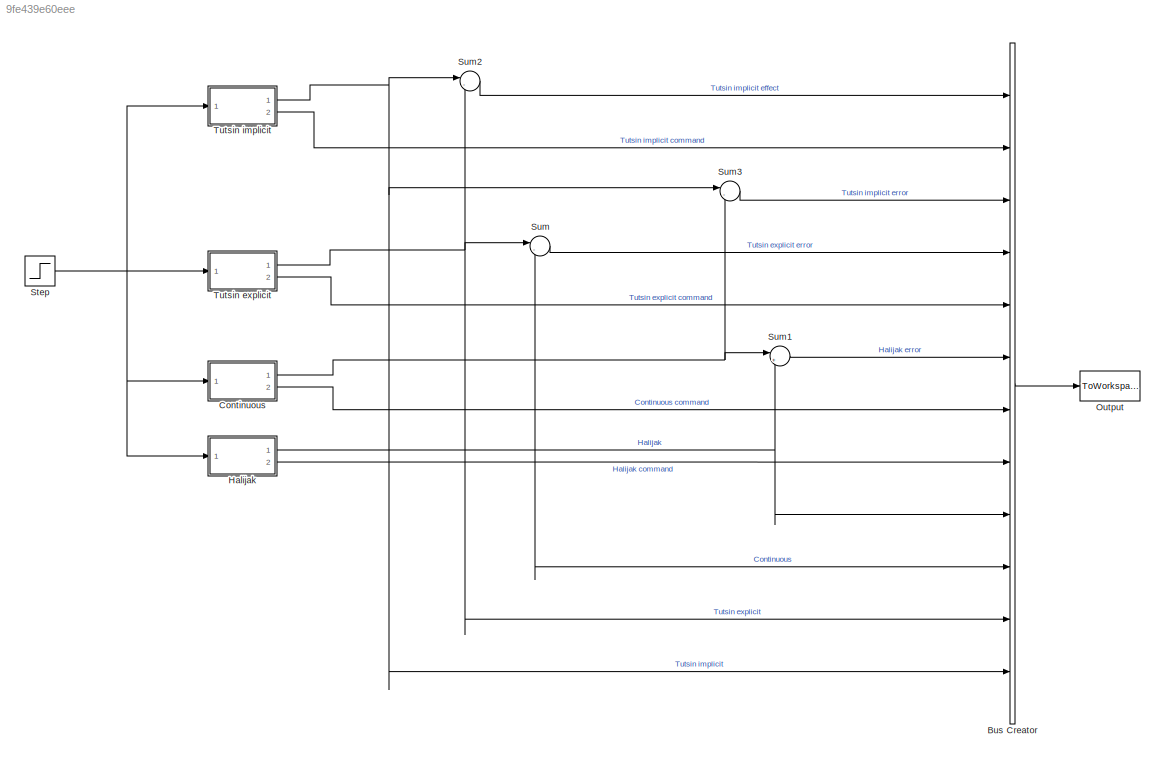
MODEL slx_9fe439e60eee
KIND model
CONFIG StopFcn = save(wSaveFileName,wSaveFileName)
BLOCK [BusCreator] Bus Creator
  DisplayOption = bar
  Inputs = 12
  Ports = [12, 1]
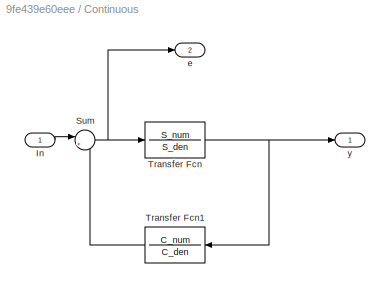
BLOCK [SubSystem] Continuous
  Ports = [1, 2]
  RequestExecContextInheritance = off
BLOCK [Inport] Continuous/In
  IconDisplay = Port number
BLOCK [Sum] Continuous/Sum
  IconShape = round
  InputSameDT = off
  Inputs = |+-
  OutDataTypeStr = Inherit: Inherit via internal rule
  Ports = [2, 1]
  SaturateOnIntegerOverflow = off
BLOCK [TransferFcn] Continuous/Transfer Fcn
  Denominator = S_den
  Numerator = S_num
BLOCK [TransferFcn] Continuous/Transfer Fcn1
  Denominator = C_den
  Numerator = C_num
BLOCK [Outport] Continuous/e
  IconDisplay = Port number
  Port = 2
BLOCK [Outport] Continuous/y
  IconDisplay = Port number
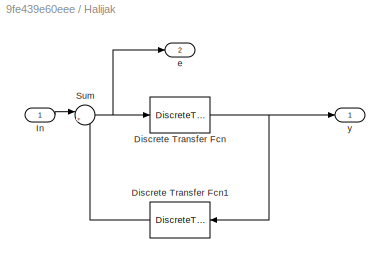
BLOCK [SubSystem] Halijak
  Ports = [1, 2]
  RequestExecContextInheritance = off
BLOCK [DiscreteTransferFcn] Halijak/Discrete Transfer Fcn
  Denominator = S_den
  InputPortMap = u0
  Numerator = S_num
  Ports = [1, 1]
  SampleTime = T
BLOCK [DiscreteTransferFcn] Halijak/Discrete Transfer Fcn1
  Denominator = C_den
  InputPortMap = u0
  Numerator = C_num
  Ports = [1, 1]
  SampleTime = T
BLOCK [Inport] Halijak/In
  IconDisplay = Port number
BLOCK [Sum] Halijak/Sum
  IconShape = round
  InputSameDT = off
  Inputs = |+-
  OutDataTypeStr = Inherit: Inherit via internal rule
  Ports = [2, 1]
  SaturateOnIntegerOverflow = off
BLOCK [Outport] Halijak/e
  IconDisplay = Port number
  Port = 2
BLOCK [Outport] Halijak/y
  IconDisplay = Port number
BLOCK [ToWorkspace] Output
  FixptAsFi = on
  MaxDataPoints = inf
  Ports = [1]
  SampleTime = wSampleTime
  Save2DSignal = 3-D array (concatenate along third dimension)
  SaveFormat = Timeseries
  VariableName = Ymodel
BLOCK [Step] Step
  After = 0.1
  SampleTime = 0
  Time = 0
BLOCK [Sum] Sum
  IconShape = round
  InputSameDT = off
  Inputs = |-+
  OutDataTypeStr = Inherit: Inherit via internal rule
  Ports = [2, 1]
  SaturateOnIntegerOverflow = off
BLOCK [Sum] Sum1
  IconShape = round
  InputSameDT = off
  Inputs = |+-
  OutDataTypeStr = Inherit: Inherit via internal rule
  Ports = [2, 1]
  SaturateOnIntegerOverflow = off
BLOCK [Sum] Sum2
  IconShape = round
  InputSameDT = off
  Inputs = |-+
  OutDataTypeStr = Inherit: Inherit via internal rule
  Ports = [2, 1]
  SaturateOnIntegerOverflow = off
BLOCK [Sum] Sum3
  IconShape = round
  InputSameDT = off
  Inputs = |-+
  OutDataTypeStr = Inherit: Inherit via internal rule
  Ports = [2, 1]
  SaturateOnIntegerOverflow = off
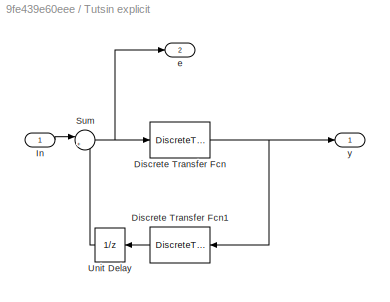
BLOCK [SubSystem] Tutsin explicit
  Ports = [1, 2]
  RequestExecContextInheritance = off
BLOCK [DiscreteTransferFcn] Tutsin explicit/Discrete Transfer Fcn
  Denominator = S_den
  InputPortMap = u0
  Numerator = S_num
  Ports = [1, 1]
  SampleTime = T
BLOCK [DiscreteTransferFcn] Tutsin explicit/Discrete Transfer Fcn1
  Denominator = C_den
  InputPortMap = u0
  Numerator = C_num
  Ports = [1, 1]
  SampleTime = T
BLOCK [Inport] Tutsin explicit/In
  IconDisplay = Port number
BLOCK [Sum] Tutsin explicit/Sum
  IconShape = round
  InputSameDT = off
  Inputs = |+-
  OutDataTypeStr = Inherit: Inherit via internal rule
  Ports = [2, 1]
  SaturateOnIntegerOverflow = off
BLOCK [UnitDelay] Tutsin explicit/Unit Delay
  InputProcessing = Elements as channels (sample based)
  SampleTime = T
BLOCK [Outport] Tutsin explicit/e
  IconDisplay = Port number
  Port = 2
BLOCK [Outport] Tutsin explicit/y
  IconDisplay = Port number
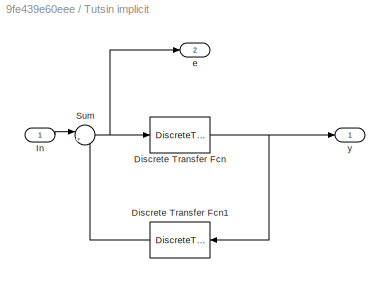
BLOCK [SubSystem] Tutsin implicit
  Ports = [1, 2]
  RequestExecContextInheritance = off
BLOCK [DiscreteTransferFcn] Tutsin implicit/Discrete Transfer Fcn
  Denominator = S_den
  InputPortMap = u0
  Numerator = S_num
  Ports = [1, 1]
  SampleTime = T
BLOCK [DiscreteTransferFcn] Tutsin implicit/Discrete Transfer Fcn1
  Denominator = C_den
  InputPortMap = u0
  Numerator = C_num
  Ports = [1, 1]
  SampleTime = T
BLOCK [Inport] Tutsin implicit/In
  IconDisplay = Port number
BLOCK [Sum] Tutsin implicit/Sum
  IconShape = round
  InputSameDT = off
  Inputs = |+-
  OutDataTypeStr = Inherit: Inherit via internal rule
  Ports = [2, 1]
  SaturateOnIntegerOverflow = off
BLOCK [Outport] Tutsin implicit/e
  IconDisplay = Port number
  Port = 2
BLOCK [Outport] Tutsin implicit/y
  IconDisplay = Port number
LINE Bus Creator:1 -> Output:1
LINE Continuous/In:1 -> Continuous/Sum:1
NET Continuous/Sum:1 -> Continuous/Transfer Fcn:1, Continuous/e:1
LINE Continuous/Transfer Fcn1:1 -> Continuous/Sum:2
NET Continuous/Transfer Fcn:1 -> Continuous/Transfer Fcn1:1, Continuous/y:1
NET Continuous:1 -> Bus Creator:10, Sum1:1, Sum3:2, Sum:2
LINE Continuous:2 -> Bus Creator:7
LINE Halijak/Discrete Transfer Fcn1:1 -> Halijak/Sum:2
NET Halijak/Discrete Transfer Fcn:1 -> Halijak/Discrete Transfer Fcn1:1, Halijak/y:1
LINE Halijak/In:1 -> Halijak/Sum:1
NET Halijak/Sum:1 -> Halijak/Discrete Transfer Fcn:1, Halijak/e:1
NET Halijak:1 -> Bus Creator:9, Sum1:2
LINE Halijak:2 -> Bus Creator:8
NET Step:1 -> Continuous:1, Halijak:1, Tutsin explicit:1, Tutsin implicit:1
LINE Sum1:1 -> Bus Creator:6
LINE Sum2:1 -> Bus Creator:1
LINE Sum3:1 -> Bus Creator:3
LINE Sum:1 -> Bus Creator:4
LINE Tutsin explicit/Discrete Transfer Fcn1:1 -> Tutsin explicit/Unit Delay:1
NET Tutsin explicit/Discrete Transfer Fcn:1 -> Tutsin explicit/Discrete Transfer Fcn1:1, Tutsin explicit/y:1
LINE Tutsin explicit/In:1 -> Tutsin explicit/Sum:1
NET Tutsin explicit/Sum:1 -> Tutsin explicit/Discrete Transfer Fcn:1, Tutsin explicit/e:1
LINE Tutsin explicit/Unit Delay:1 -> Tutsin explicit/Sum:2
NET Tutsin explicit:1 -> Bus Creator:11, Sum2:2, Sum:1
LINE Tutsin explicit:2 -> Bus Creator:5
LINE Tutsin implicit/Discrete Transfer Fcn1:1 -> Tutsin implicit/Sum:2
NET Tutsin implicit/Discrete Transfer Fcn:1 -> Tutsin implicit/Discrete Transfer Fcn1:1, Tutsin implicit/y:1
LINE Tutsin implicit/In:1 -> Tutsin implicit/Sum:1
NET Tutsin implicit/Sum:1 -> Tutsin implicit/Discrete Transfer Fcn:1, Tutsin implicit/e:1
NET Tutsin implicit:1 -> Bus Creator:12, Sum2:1, Sum3:1
LINE Tutsin implicit:2 -> Bus Creator:2
note: NET lines group one-source signal fan-out (src -> all destinations, sorted); 1:1 wires keep LINE
